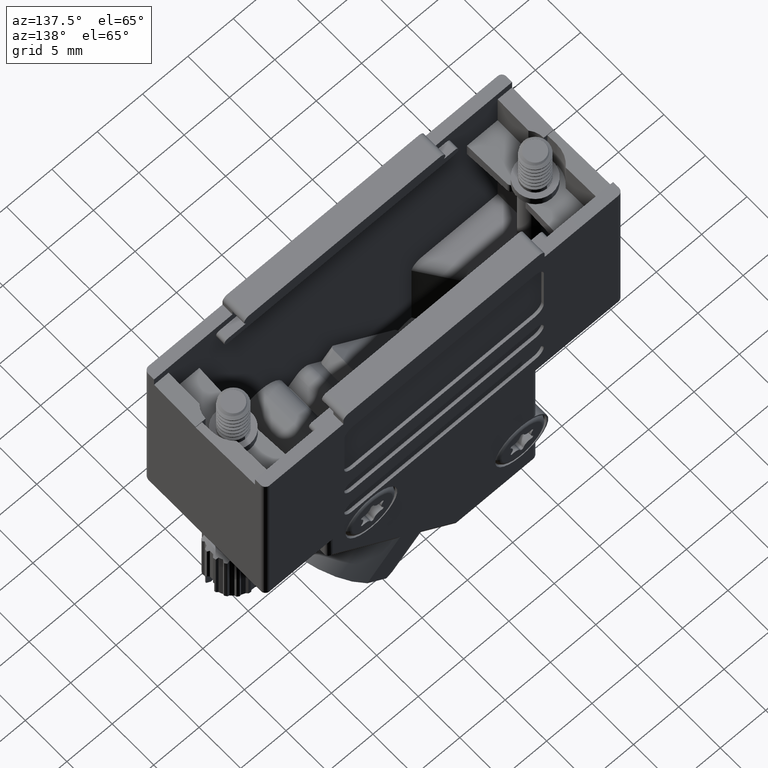
[diagram: clean part render]
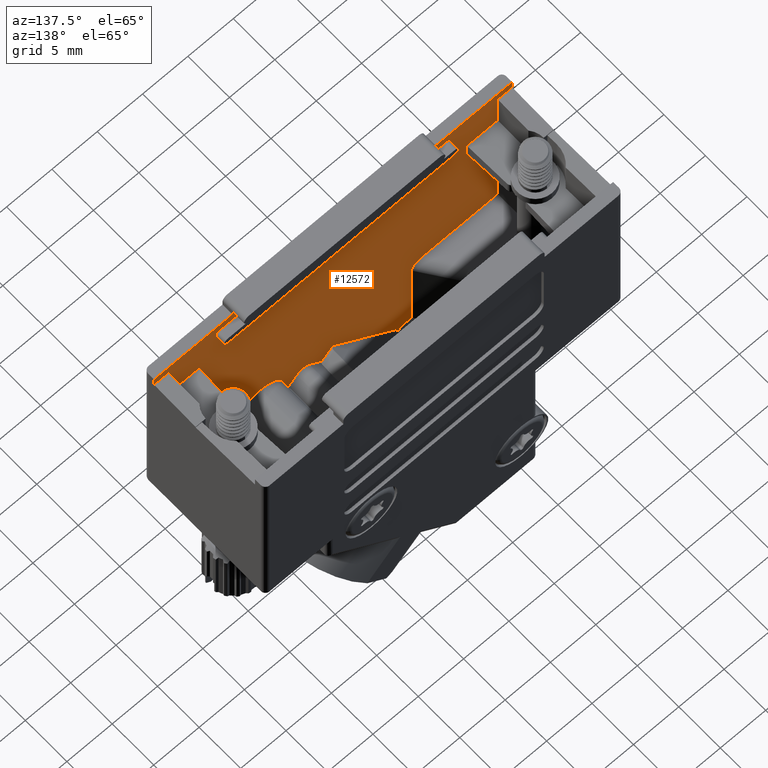
[diagram: same view with one face highlighted and labeled with its STEP entity id]
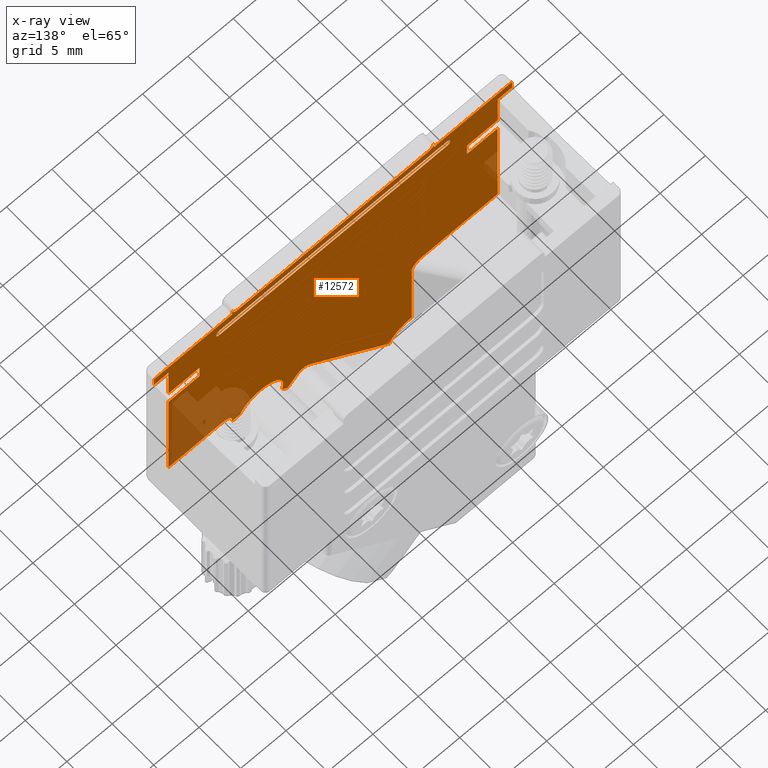
[diagram: x-ray of the same camera — body ghosted, the highlighted face saturated]
A machine part, auxiliary view. The second image highlights one B-rep face of the part: STEP entity #12572.
The next image is the same camera in x-ray: the body ghosted, the highlighted face saturated — about 9% of this face is hidden behind the body in this view.
In plain terms, the highlighted planar face has unit normal (0, 1, 0).
Its self-contained STEP definition (entity closure, byte-faithful):
#9 =( BOUNDED_CURVE ( )  B_SPLINE_CURVE ( 3, ( #13749, #17, #5198, #22217 ),
 .UNSPECIFIED., .F., .F. ) 
 B_SPLINE_CURVE_WITH_KNOTS ( ( 4, 4 ),
 ( 0.000000000000000000, 1.570796326794896558 ),
 .UNSPECIFIED. ) 
 CURVE ( )  GEOMETRIC_REPRESENTATION_ITEM ( )  RATIONAL_B_SPLINE_CURVE ( ( 1.000000000000000000, 0.8047378541243649375, 0.8047378541243649375, 1.000000000000000000 ) ) 
 REPRESENTATION_ITEM ( '' )  );
#17 = CARTESIAN_POINT ( 'NONE',  ( -8.650000000000000355, -6.149999999999998579, -19.61421356237309155 ) ) ;
#170 = VERTEX_POINT ( 'NONE', #13335 ) ;
#276 = DIRECTION ( 'NONE',  ( 0.000000000000000000, 0.000000000000000000, 1.000000000000000000 ) ) ;
#281 = CARTESIAN_POINT ( 'NONE',  ( 14.75000000000000000, -6.149999999999999467, -5.000000000000000000 ) ) ;
#285 = ORIENTED_EDGE ( 'NONE', *, *, #11134, .F. ) ;
#300 = CIRCLE ( 'NONE', #12899, 0.3999999999999995226 ) ;
#342 = CARTESIAN_POINT ( 'NONE',  ( -5.457285348059899732, -6.149999999999999467, -31.39547981021898693 ) ) ;
#394 = VERTEX_POINT ( 'NONE', #10622 ) ;
#428 = DIRECTION ( 'NONE',  ( 0.000000000000000000, 0.000000000000000000, -1.000000000000000000 ) ) ;
#460 = EDGE_LOOP ( 'NONE', ( #3868, #730, #10949, #14905, #7994, #11035, #7534, #11518 ) ) ;
#512 = VERTEX_POINT ( 'NONE', #1707 ) ;
#665 = LINE ( 'NONE', #9470, #6579 ) ;
#679 = LINE ( 'NONE', #14427, #5769 ) ;
#730 = ORIENTED_EDGE ( 'NONE', *, *, #5648, .F. ) ;
#816 = VERTEX_POINT ( 'NONE', #18033 ) ;
#819 = CARTESIAN_POINT ( 'NONE',  ( 2.603731957466735469, -6.149999999999999467, -21.92024894231925813 ) ) ;
#861 = CIRCLE ( 'NONE', #15975, 0.5999999999999997558 ) ;
#885 = CARTESIAN_POINT ( 'NONE',  ( 18.14999999999999858, -6.149999999999999467, 4.886340728597939669E-15 ) ) ;
#930 = CARTESIAN_POINT ( 'NONE',  ( -18.14999999999999858, -6.149999999999999467, 4.886340728597939669E-15 ) ) ;
#936 = CARTESIAN_POINT ( 'NONE',  ( -11.15000000000000036, -6.149999999999999467, -19.19999999999999574 ) ) ;
#1063 = CARTESIAN_POINT ( 'NONE',  ( 19.75000000000000000, -6.150000000000003020, -7.207046412982171989E-15 ) ) ;
#1265 = EDGE_CURVE ( 'NONE', #15718, #17739, #17963, .T. ) ;
#1367 = DIRECTION ( 'NONE',  ( 0.000000000000000000, 0.000000000000000000, 1.000000000000000000 ) ) ;
#1386 = VERTEX_POINT ( 'NONE', #21611 ) ;
#1484 = CARTESIAN_POINT ( 'NONE',  ( -8.650000000000000355, -6.149999999999999467, -20.19999999999999574 ) ) ;
#1521 = VECTOR ( 'NONE', #19870, 1000.000000000000000 ) ;
#1634 = CIRCLE ( 'NONE', #12079, 0.3999999999999997446 ) ;
#1654 = DIRECTION ( 'NONE',  ( 0.000000000000000000, 0.000000000000000000, 1.000000000000000000 ) ) ;
#1707 = CARTESIAN_POINT ( 'NONE',  ( 12.49999999999999645, -6.149999999999999467, -1.000000000000000000 ) ) ;
#1768 = VERTEX_POINT ( 'NONE', #15838 ) ;
#1769 = VECTOR ( 'NONE', #21869, 1000.000000000000000 ) ;
#1812 = DIRECTION ( 'NONE',  ( 0.7071067811865465735, -0.000000000000000000, 0.7071067811865485719 ) ) ;
#1939 = EDGE_CURVE ( 'NONE', #6476, #1386, #4758, .T. ) ;
#1951 = VECTOR ( 'NONE', #9880, 1000.000000000000000 ) ;
#1956 = ORIENTED_EDGE ( 'NONE', *, *, #18010, .T. ) ;
#2091 = EDGE_CURVE ( 'NONE', #9994, #15790, #3888, .T. ) ;
#2140 = VECTOR ( 'NONE', #8546, 1000.000000000000000 ) ;
#2186 = EDGE_CURVE ( 'NONE', #15790, #9910, #16673, .T. ) ;
#2225 = VERTEX_POINT ( 'NONE', #6333 ) ;
#2276 = ORIENTED_EDGE ( 'NONE', *, *, #6762, .F. ) ;
#2344 = EDGE_CURVE ( 'NONE', #15415, #9910, #7103, .T. ) ;
#2357 = DIRECTION ( 'NONE',  ( -0.000000000000000000, -1.000000000000000000, -0.000000000000000000 ) ) ;
#2431 = DIRECTION ( 'NONE',  ( 0.000000000000000000, 1.000000000000000000, 0.000000000000000000 ) ) ;
#2535 = EDGE_CURVE ( 'NONE', #11879, #512, #15986, .T. ) ;
#2582 = AXIS2_PLACEMENT_3D ( 'NONE', #8856, #15710, #276 ) ;
#2614 = CARTESIAN_POINT ( 'NONE',  ( -19.75000000000000000, -6.150000000000003020, 4.886340728597940458E-15 ) ) ;
#2685 = DIRECTION ( 'NONE',  ( 0.000000000000000000, 0.000000000000000000, 1.000000000000000000 ) ) ;
#2704 = DIRECTION ( 'NONE',  ( 0.7071067811865476838, 0.000000000000000000, -0.7071067811865474617 ) ) ;
#2736 = LINE ( 'NONE', #4552, #5571 ) ;
#2807 = DIRECTION ( 'NONE',  ( 0.000000000000000000, 1.000000000000000000, -0.000000000000000000 ) ) ;
#2946 = EDGE_CURVE ( 'NONE', #17761, #13256, #5831, .T. ) ;
#2975 = LINE ( 'NONE', #1063, #8337 ) ;
#3017 = LINE ( 'NONE', #11495, #4422 ) ;
#3131 = ORIENTED_EDGE ( 'NONE', *, *, #16115, .F. ) ;
#3164 = ORIENTED_EDGE ( 'NONE', *, *, #18586, .F. ) ;
#3253 = CARTESIAN_POINT ( 'NONE',  ( -18.14999999999999858, -6.149999999999999467, -6.599999999999999645 ) ) ;
#3347 = LINE ( 'NONE', #11722, #13090 ) ;
#3419 = LINE ( 'NONE', #17264, #21956 ) ;
#3501 = CARTESIAN_POINT ( 'NONE',  ( -12.49999999999999645, -6.149999999999999467, -1.899999999999999911 ) ) ;
#3582 = DIRECTION ( 'NONE',  ( 6.938893903907222067E-15, 0.000000000000000000, 1.000000000000000000 ) ) ;
#3583 = AXIS2_PLACEMENT_3D ( 'NONE', #16577, #16903, #1367 ) ;
#3659 = CARTESIAN_POINT ( 'NONE',  ( 12.50000000000000000, -6.149999999999999467, -1.500000000000000000 ) ) ;
#3720 = DIRECTION ( 'NONE',  ( 0.000000000000000000, 0.000000000000000000, 1.000000000000000000 ) ) ;
#3868 = ORIENTED_EDGE ( 'NONE', *, *, #7949, .F. ) ;
#3888 = LINE ( 'NONE', #14758, #11872 ) ;
#3919 = EDGE_LOOP ( 'NONE', ( #19517, #18004, #16842, #17251, #6657, #20510, #11639, #7997, #9923, #9827, #12361, #17989, #285, #13100, #12096, #4250, #1956, #14338, #7222, #20437, #16920, #3164, #17457, #6605, #19578, #9525, #11723, #4733, #15397, #4967, #18777, #2276, #13591, #3131, #11637, #20156, #5215, #18487 ) ) ;
#3953 = VECTOR ( 'NONE', #3720, 1000.000000000000000 ) ;
#3963 = CARTESIAN_POINT ( 'NONE',  ( 18.14999999999999858, -6.149999999999999467, -5.000000000000000888 ) ) ;
#4014 = VECTOR ( 'NONE', #2704, 1000.000000000000000 ) ;
#4038 = VERTEX_POINT ( 'NONE', #14054 ) ;
#4114 = CARTESIAN_POINT ( 'NONE',  ( 11.10000000000000142, -6.149999999999999467, 4.886340728597939669E-15 ) ) ;
#4250 = ORIENTED_EDGE ( 'NONE', *, *, #17124, .F. ) ;
#4253 = EDGE_CURVE ( 'NONE', #2225, #6476, #18739, .T. ) ;
#4272 = DIRECTION ( 'NONE',  ( 0.000000000000000000, 0.000000000000000000, 1.000000000000000000 ) ) ;
#4322 = VECTOR ( 'NONE', #14386, 1000.000000000000000 ) ;
#4382 = DIRECTION ( 'NONE',  ( 0.000000000000000000, 1.000000000000000000, 0.000000000000000000 ) ) ;
#4422 = VECTOR ( 'NONE', #4724, 1000.000000000000000 ) ;
#4436 = DIRECTION ( 'NONE',  ( -1.000000000000000000, 0.000000000000000000, 0.000000000000000000 ) ) ;
#4466 = DIRECTION ( 'NONE',  ( 0.000000000000000000, -0.000000000000000000, 1.000000000000000000 ) ) ;
#4536 = CARTESIAN_POINT ( 'NONE',  ( 18.14999999999999858, -6.149999999999999467, -1.000000000000000000 ) ) ;
#4552 = CARTESIAN_POINT ( 'NONE',  ( 11.14999999999998614, -6.149999999999999467, -19.19999999999999574 ) ) ;
#4683 = LINE ( 'NONE', #22137, #11589 ) ;
#4686 = LINE ( 'NONE', #6264, #1951 ) ;
#4691 = EDGE_CURVE ( 'NONE', #11421, #816, #4683, .T. ) ;
#4724 = DIRECTION ( 'NONE',  ( 1.000000000000000000, 0.000000000000000000, 0.000000000000000000 ) ) ;
#4733 = ORIENTED_EDGE ( 'NONE', *, *, #4691, .F. ) ;
#4758 = CIRCLE ( 'NONE', #2582, 2.500000000000002220 ) ;
#4769 = EDGE_CURVE ( 'NONE', #13256, #394, #2975, .T. ) ;
#4959 = LINE ( 'NONE', #18696, #21440 ) ;
#4967 = ORIENTED_EDGE ( 'NONE', *, *, #18152, .F. ) ;
#5038 = VERTEX_POINT ( 'NONE', #819 ) ;
#5089 = EDGE_CURVE ( 'NONE', #5669, #8301, #9400, .T. ) ;
#5159 = EDGE_CURVE ( 'NONE', #5832, #11421, #17972, .T. ) ;
#5198 = CARTESIAN_POINT ( 'NONE',  ( -9.154295968545127948, -6.149999999999998579, -19.19999999999999574 ) ) ;
#5215 = ORIENTED_EDGE ( 'NONE', *, *, #1939, .F. ) ;
#5329 = CARTESIAN_POINT ( 'NONE',  ( -18.14999999999999858, -6.150000000000003020, -1.000000000000000000 ) ) ;
#5347 = DIRECTION ( 'NONE',  ( 0.000000000000000000, 0.000000000000000000, -1.000000000000000000 ) ) ;
#5436 = VECTOR ( 'NONE', #10730, 1000.000000000000000 ) ;
#5496 = VECTOR ( 'NONE', #10126, 1000.000000000000000 ) ;
#5508 = EDGE_CURVE ( 'NONE', #9994, #11163, #679, .T. ) ;
#5571 = VECTOR ( 'NONE', #11546, 1000.000000000000000 ) ;
#5580 = AXIS2_PLACEMENT_3D ( 'NONE', #342, #16000, #12516 ) ;
#5598 = VECTOR ( 'NONE', #19817, 1000.000000000000000 ) ;
#5620 = CARTESIAN_POINT ( 'NONE',  ( 3.310838738653283819, -6.149999999999999467, -22.62735572350580426 ) ) ;
#5648 = EDGE_CURVE ( 'NONE', #512, #22238, #19445, .T. ) ;
#5669 = VERTEX_POINT ( 'NONE', #13397 ) ;
#5747 = DIRECTION ( 'NONE',  ( 1.000000000000000000, 0.000000000000000000, 0.000000000000000000 ) ) ;
#5769 = VECTOR ( 'NONE', #12744, 1000.000000000000000 ) ;
#5831 = LINE ( 'NONE', #12589, #4322 ) ;
#5832 = VERTEX_POINT ( 'NONE', #15520 ) ;
#6017 = EDGE_CURVE ( 'NONE', #4038, #15718, #3419, .T. ) ;
#6264 = CARTESIAN_POINT ( 'NONE',  ( 3.310838738653283819, -6.149999999999999467, -21.21314216113270845 ) ) ;
#6333 = CARTESIAN_POINT ( 'NONE',  ( -8.650000000000000355, -6.149999999999999467, -29.20450405730644405 ) ) ;
#6398 = CARTESIAN_POINT ( 'NONE',  ( -12.90000000000000036, -6.149999999999999467, -1.400000000000002798 ) ) ;
#6476 = VERTEX_POINT ( 'NONE', #8584 ) ;
#6510 = EDGE_CURVE ( 'NONE', #6530, #11451, #15437, .T. ) ;
#6523 = AXIS2_PLACEMENT_3D ( 'NONE', #6729, #8420, #18318 ) ;
#6530 = VERTEX_POINT ( 'NONE', #13641 ) ;
#6579 = VECTOR ( 'NONE', #16314, 1000.000000000000000 ) ;
#6601 = EDGE_CURVE ( 'NONE', #16268, #7312, #12747, .T. ) ;
#6605 = ORIENTED_EDGE ( 'NONE', *, *, #19067, .T. ) ;
#6657 = ORIENTED_EDGE ( 'NONE', *, *, #16480, .F. ) ;
#6729 = CARTESIAN_POINT ( 'NONE',  ( -8.500000000000003553, -6.149999999999999467, -31.69999999999999929 ) ) ;
#6762 = EDGE_CURVE ( 'NONE', #13736, #7880, #20175, .T. ) ;
#6874 = CARTESIAN_POINT ( 'NONE',  ( 18.14999999999999858, -6.149999999999999467, -6.599999999999999645 ) ) ;
#6894 = VERTEX_POINT ( 'NONE', #10251 ) ;
#6954 = CARTESIAN_POINT ( 'NONE',  ( 10.50000000000000178, -6.149999999999999467, 0.5999999999999999778 ) ) ;
#7102 = CARTESIAN_POINT ( 'NONE',  ( 11.14999999999998614, -6.149999999999999467, -20.19999999999999574 ) ) ;
#7103 = LINE ( 'NONE', #13957, #3953 ) ;
#7147 = DIRECTION ( 'NONE',  ( -1.000000000000000000, 0.000000000000000000, 0.000000000000000000 ) ) ;
#7222 = ORIENTED_EDGE ( 'NONE', *, *, #2946, .F. ) ;
#7233 = VERTEX_POINT ( 'NONE', #20259 ) ;
#7312 = VERTEX_POINT ( 'NONE', #16958 ) ;
#7534 = ORIENTED_EDGE ( 'NONE', *, *, #6510, .F. ) ;
#7793 = VECTOR ( 'NONE', #15309, 1000.000000000000000 ) ;
#7831 = LINE ( 'NONE', #9630, #1521 ) ;
#7880 = VERTEX_POINT ( 'NONE', #21959 ) ;
#7891 = DIRECTION ( 'NONE',  ( 0.000000000000000000, 0.000000000000000000, -1.000000000000000000 ) ) ;
#7949 = EDGE_CURVE ( 'NONE', #22238, #1768, #20165, .T. ) ;
#7950 = DIRECTION ( 'NONE',  ( 0.000000000000000000, 0.000000000000000000, 1.000000000000000000 ) ) ;
#7994 = ORIENTED_EDGE ( 'NONE', *, *, #12184, .F. ) ;
#7997 = ORIENTED_EDGE ( 'NONE', *, *, #2344, .T. ) ;
#8045 = DIRECTION ( 'NONE',  ( 0.000000000000000000, -0.000000000000000000, 1.000000000000000000 ) ) ;
#8301 = VERTEX_POINT ( 'NONE', #21707 ) ;
#8321 = CARTESIAN_POINT ( 'NONE',  ( -11.10000000000000142, -6.149999999999999467, 0.6000000000000024203 ) ) ;
#8329 = VERTEX_POINT ( 'NONE', #10919 ) ;
#8337 = VECTOR ( 'NONE', #7950, 1000.000000000000000 ) ;
#8420 = DIRECTION ( 'NONE',  ( 0.000000000000000000, 1.000000000000000000, 0.000000000000000000 ) ) ;
#8423 = DIRECTION ( 'NONE',  ( 0.000000000000000000, 1.000000000000000000, 0.000000000000000000 ) ) ;
#8542 = AXIS2_PLACEMENT_3D ( 'NONE', #21476, #2431, #4466 ) ;
#8546 = DIRECTION ( 'NONE',  ( 0.000000000000000000, 0.000000000000000000, -1.000000000000000000 ) ) ;
#8584 = CARTESIAN_POINT ( 'NONE',  ( -8.500000000000003553, -6.149999999999999467, -29.19999999999999574 ) ) ;
#8856 = CARTESIAN_POINT ( 'NONE',  ( -8.500000000000003553, -6.149999999999999467, -31.69999999999999929 ) ) ;
#8892 = CARTESIAN_POINT ( 'NONE',  ( -12.50000000000000000, -6.149999999999999467, -1.399999999999999911 ) ) ;
#8967 = EDGE_CURVE ( 'NONE', #17565, #11879, #300, .T. ) ;
#8969 = DIRECTION ( 'NONE',  ( -0.000000000000000000, -0.000000000000000000, 1.000000000000000000 ) ) ;
#9035 = CARTESIAN_POINT ( 'NONE',  ( 18.14999999999999858, -6.149999999999999467, 4.886340728597939669E-15 ) ) ;
#9066 = EDGE_CURVE ( 'NONE', #13736, #5038, #21910, .T. ) ;
#9097 = DIRECTION ( 'NONE',  ( 0.000000000000000000, 0.000000000000000000, 1.000000000000000000 ) ) ;
#9161 = CARTESIAN_POINT ( 'NONE',  ( 14.75000000000000000, -6.149999999999999467, -5.000000000000000000 ) ) ;
#9400 = LINE ( 'NONE', #930, #20506 ) ;
#9469 = LINE ( 'NONE', #885, #5598 ) ;
#9470 = CARTESIAN_POINT ( 'NONE',  ( -18.14999999999999858, -6.149999999999999467, -19.19999999999999574 ) ) ;
#9525 = ORIENTED_EDGE ( 'NONE', *, *, #1265, .T. ) ;
#9619 = VERTEX_POINT ( 'NONE', #18073 ) ;
#9630 = CARTESIAN_POINT ( 'NONE',  ( -18.14999999999999858, -6.149999999999999467, -5.000000000000000888 ) ) ;
#9682 = LINE ( 'NONE', #8321, #5496 ) ;
#9713 = DIRECTION ( 'NONE',  ( 0.000000000000000000, 0.000000000000000000, -1.000000000000000000 ) ) ;
#9759 = VERTEX_POINT ( 'NONE', #16930 ) ;
#9792 = CARTESIAN_POINT ( 'NONE',  ( -12.90000000000000036, -6.149999999999999467, -1.499999999999997113 ) ) ;
#9827 = ORIENTED_EDGE ( 'NONE', *, *, #2091, .F. ) ;
#9880 = DIRECTION ( 'NONE',  ( 0.7071067811865475727, -0.000000000000000000, 0.7071067811865474617 ) ) ;
#9910 = VERTEX_POINT ( 'NONE', #5329 ) ;
#9923 = ORIENTED_EDGE ( 'NONE', *, *, #2186, .F. ) ;
#9976 = DIRECTION ( 'NONE',  ( 1.000000000000000000, 0.000000000000000000, 0.000000000000000000 ) ) ;
#9994 = VERTEX_POINT ( 'NONE', #2614 ) ;
#10021 = CARTESIAN_POINT ( 'NONE',  ( 12.90000000000000036, -6.149999999999999467, -1.400000000000002798 ) ) ;
#10126 = DIRECTION ( 'NONE',  ( 2.891205793294690455E-15, 0.000000000000000000, -1.000000000000000000 ) ) ;
#10139 = VERTEX_POINT ( 'NONE', #19975 ) ;
#10202 = VECTOR ( 'NONE', #16743, 1000.000000000000000 ) ;
#10251 = CARTESIAN_POINT ( 'NONE',  ( 14.75000000000000000, -6.149999999999999467, -6.599999999999999645 ) ) ;
#10260 = CARTESIAN_POINT ( 'NONE',  ( -18.14999999999999858, -6.149999999999999467, -6.599999999999999645 ) ) ;
#10378 = CARTESIAN_POINT ( 'NONE',  ( 5.646255712926483206, -6.149999999999999467, -22.34254841467347674 ) ) ;
#10622 = CARTESIAN_POINT ( 'NONE',  ( 19.75000000000000000, -6.150000000000003020, -7.207046412982171989E-15 ) ) ;
#10686 = VERTEX_POINT ( 'NONE', #1484 ) ;
#10704 = CARTESIAN_POINT ( 'NONE',  ( 19.75000000000000000, -6.150000000000003020, -1.000000000000000000 ) ) ;
#10730 = DIRECTION ( 'NONE',  ( 1.000000000000000000, -0.000000000000000000, -2.551063935260010491E-16 ) ) ;
#10771 = CARTESIAN_POINT ( 'NONE',  ( -1.780330085889852088, -6.149999999999999467, -26.30431098567584414 ) ) ;
#10775 = EDGE_CURVE ( 'NONE', #7880, #9759, #18919, .T. ) ;
#10794 = CARTESIAN_POINT ( 'NONE',  ( 12.14999999999998970, -6.149999999999999467, -19.19999999999999574 ) ) ;
#10823 = EDGE_CURVE ( 'NONE', #10139, #1386, #17840, .T. ) ;
#10892 = AXIS2_PLACEMENT_3D ( 'NONE', #22263, #16741, #11806 ) ;
#10919 = CARTESIAN_POINT ( 'NONE',  ( -9.867478166711729060, -6.149999999999999467, -19.19999999999999574 ) ) ;
#10949 = ORIENTED_EDGE ( 'NONE', *, *, #2535, .F. ) ;
#11035 = ORIENTED_EDGE ( 'NONE', *, *, #15481, .F. ) ;
#11134 = EDGE_CURVE ( 'NONE', #5669, #19367, #20244, .T. ) ;
#11163 = VERTEX_POINT ( 'NONE', #20572 ) ;
#11253 = EDGE_CURVE ( 'NONE', #2225, #10686, #19330, .T. ) ;
#11268 = CARTESIAN_POINT ( 'NONE',  ( -12.50000000000000000, -6.149999999999999467, -1.500000000000000000 ) ) ;
#11421 = VERTEX_POINT ( 'NONE', #13429 ) ;
#11451 = VERTEX_POINT ( 'NONE', #12296 ) ;
#11486 = EDGE_CURVE ( 'NONE', #10686, #8329, #9, .T. ) ;
#11495 = CARTESIAN_POINT ( 'NONE',  ( -18.14999999999999858, -6.149999999999999467, 4.886340728597939669E-15 ) ) ;
#11518 = ORIENTED_EDGE ( 'NONE', *, *, #18570, .F. ) ;
#11546 = DIRECTION ( 'NONE',  ( 0.000000000000000000, 0.000000000000000000, -1.000000000000000000 ) ) ;
#11589 = VECTOR ( 'NONE', #9976, 1000.000000000000000 ) ;
#11637 = ORIENTED_EDGE ( 'NONE', *, *, #14117, .F. ) ;
#11639 = ORIENTED_EDGE ( 'NONE', *, *, #17134, .F. ) ;
#11722 = CARTESIAN_POINT ( 'NONE',  ( -14.75000000000000000, -6.149999999999999467, -5.000000000000000000 ) ) ;
#11723 = ORIENTED_EDGE ( 'NONE', *, *, #14477, .T. ) ;
#11806 = DIRECTION ( 'NONE',  ( 0.000000000000000000, 0.000000000000000000, 1.000000000000000000 ) ) ;
#11833 = CARTESIAN_POINT ( 'NONE',  ( -12.49999999999999645, -6.149999999999999467, -1.000000000000000000 ) ) ;
#11872 = VECTOR ( 'NONE', #9713, 1000.000000000000000 ) ;
#11879 = VERTEX_POINT ( 'NONE', #11833 ) ;
#11981 = CIRCLE ( 'NONE', #21324, 2.499999999999998668 ) ;
#12079 = AXIS2_PLACEMENT_3D ( 'NONE', #11268, #4382, #2685 ) ;
#12096 = ORIENTED_EDGE ( 'NONE', *, *, #13830, .F. ) ;
#12184 = EDGE_CURVE ( 'NONE', #16813, #17565, #21833, .T. ) ;
#12208 = AXIS2_PLACEMENT_3D ( 'NONE', #21061, #2357, #4272 ) ;
#12296 = CARTESIAN_POINT ( 'NONE',  ( -12.49999999999999645, -6.149999999999999467, -1.899999999999999911 ) ) ;
#12336 = DIRECTION ( 'NONE',  ( 0.000000000000000000, 1.000000000000000000, -0.000000000000000000 ) ) ;
#12361 = ORIENTED_EDGE ( 'NONE', *, *, #5508, .T. ) ;
#12375 = DIRECTION ( 'NONE',  ( 0.000000000000000000, 1.000000000000000000, -0.000000000000000000 ) ) ;
#12437 = DIRECTION ( 'NONE',  ( 1.000000000000000000, 0.000000000000000000, 0.000000000000000000 ) ) ;
#12516 = DIRECTION ( 'NONE',  ( -1.387778780781444413E-14, 0.000000000000000000, 1.000000000000000000 ) ) ;
#12572 = ADVANCED_FACE ( 'NONE', ( #14924, #13141 ), #20015, .T. ) ;
#12589 = CARTESIAN_POINT ( 'NONE',  ( -19.75000000000000000, -6.150000000000003020, -1.000000000000000000 ) ) ;
#12618 = AXIS2_PLACEMENT_3D ( 'NONE', #16660, #2807, #7891 ) ;
#12744 = DIRECTION ( 'NONE',  ( 1.000000000000000000, 0.000000000000000000, 0.000000000000000000 ) ) ;
#12747 = LINE ( 'NONE', #3963, #5436 ) ;
#12810 = VECTOR ( 'NONE', #1812, 1000.000000000000000 ) ;
#12862 = CARTESIAN_POINT ( 'NONE',  ( -12.90000000000000036, -6.149999999999999467, -1.400000000000002798 ) ) ;
#12899 = AXIS2_PLACEMENT_3D ( 'NONE', #8892, #12375, #428 ) ;
#12974 = VERTEX_POINT ( 'NONE', #4114 ) ;
#13090 = VECTOR ( 'NONE', #22178, 1000.000000000000000 ) ;
#13100 = ORIENTED_EDGE ( 'NONE', *, *, #5089, .T. ) ;
#13141 = FACE_BOUND ( 'NONE', #460, .T. ) ;
#13256 = VERTEX_POINT ( 'NONE', #10704 ) ;
#13335 = CARTESIAN_POINT ( 'NONE',  ( 11.10000000000000142, -6.149999999999999467, 0.5999999999999999778 ) ) ;
#13397 = CARTESIAN_POINT ( 'NONE',  ( -10.50000000000000000, -6.149999999999999467, 2.311115933264683024E-30 ) ) ;
#13429 = CARTESIAN_POINT ( 'NONE',  ( 10.29128784747791769, -6.149999999999999467, -20.49999999999999645 ) ) ;
#13519 = CARTESIAN_POINT ( 'NONE',  ( -19.75000000000000000, -6.150000000000003020, -1.000000000000000000 ) ) ;
#13591 = ORIENTED_EDGE ( 'NONE', *, *, #9066, .T. ) ;
#13641 = CARTESIAN_POINT ( 'NONE',  ( 12.49999999999999645, -6.149999999999999467, -1.899999999999999689 ) ) ;
#13736 = VERTEX_POINT ( 'NONE', #17643 ) ;
#13749 = CARTESIAN_POINT ( 'NONE',  ( -8.650000000000000355, -6.149999999999999467, -20.19999999999999574 ) ) ;
#13817 = DIRECTION ( 'NONE',  ( 0.000000000000000000, 1.000000000000000000, 0.000000000000000000 ) ) ;
#13830 = EDGE_CURVE ( 'NONE', #170, #8301, #861, .T. ) ;
#13957 = CARTESIAN_POINT ( 'NONE',  ( -18.14999999999999858, -6.149999999999999467, -19.19999999999999574 ) ) ;
#14054 = CARTESIAN_POINT ( 'NONE',  ( 18.14999999999999858, -6.149999999999999467, -19.19999999999999574 ) ) ;
#14074 = DIRECTION ( 'NONE',  ( 0.7071067811865475727, -0.000000000000000000, 0.7071067811865474617 ) ) ;
#14117 = EDGE_CURVE ( 'NONE', #10139, #20027, #4686, .T. ) ;
#14338 = ORIENTED_EDGE ( 'NONE', *, *, #4769, .F. ) ;
#14386 = DIRECTION ( 'NONE',  ( 1.000000000000000000, -0.000000000000000000, 0.000000000000000000 ) ) ;
#14424 = VECTOR ( 'NONE', #15335, 1000.000000000000000 ) ;
#14427 = CARTESIAN_POINT ( 'NONE',  ( -18.14999999999999858, -6.149999999999999467, 4.886340728597939669E-15 ) ) ;
#14477 = EDGE_CURVE ( 'NONE', #17739, #816, #2736, .T. ) ;
#14557 = EDGE_CURVE ( 'NONE', #8329, #20137, #16364, .T. ) ;
#14753 = CARTESIAN_POINT ( 'NONE',  ( 12.90000000000000036, -6.149999999999999467, -1.400000000000002798 ) ) ;
#14758 = CARTESIAN_POINT ( 'NONE',  ( -19.75000000000000000, -6.150000000000003020, 4.886340728597939669E-15 ) ) ;
#14905 = ORIENTED_EDGE ( 'NONE', *, *, #8967, .F. ) ;
#14924 = FACE_OUTER_BOUND ( 'NONE', #3919, .T. ) ;
#15309 = DIRECTION ( 'NONE',  ( -1.000000000000000000, -0.000000000000000000, -0.000000000000000000 ) ) ;
#15335 = DIRECTION ( 'NONE',  ( -1.000000000000000000, -0.000000000000000000, -0.000000000000000000 ) ) ;
#15397 = ORIENTED_EDGE ( 'NONE', *, *, #5159, .F. ) ;
#15415 = VERTEX_POINT ( 'NONE', #21614 ) ;
#15437 = LINE ( 'NONE', #3501, #14424 ) ;
#15472 = EDGE_CURVE ( 'NONE', #17761, #7312, #9469, .T. ) ;
#15476 = LINE ( 'NONE', #281, #19173 ) ;
#15481 = EDGE_CURVE ( 'NONE', #11451, #16813, #1634, .T. ) ;
#15520 = CARTESIAN_POINT ( 'NONE',  ( 7.999999999999996447, -6.149999999999999467, -19.00000000000000000 ) ) ;
#15710 = DIRECTION ( 'NONE',  ( 0.000000000000000000, 1.000000000000000000, 0.000000000000000000 ) ) ;
#15718 = VERTEX_POINT ( 'NONE', #10794 ) ;
#15790 = VERTEX_POINT ( 'NONE', #21985 ) ;
#15838 = CARTESIAN_POINT ( 'NONE',  ( 12.90000000000000036, -6.149999999999999467, -1.499999999999997113 ) ) ;
#15953 = VECTOR ( 'NONE', #17569, 1000.000000000000000 ) ;
#15975 = AXIS2_PLACEMENT_3D ( 'NONE', #6954, #8423, #1654 ) ;
#15986 = LINE ( 'NONE', #19602, #20136 ) ;
#16000 = DIRECTION ( 'NONE',  ( -0.000000000000000000, -1.000000000000000000, -0.000000000000000000 ) ) ;
#16115 = EDGE_CURVE ( 'NONE', #20027, #5038, #4959, .T. ) ;
#16268 = VERTEX_POINT ( 'NONE', #9161 ) ;
#16314 = DIRECTION ( 'NONE',  ( 0.000000000000000000, 0.000000000000000000, 1.000000000000000000 ) ) ;
#16364 = LINE ( 'NONE', #936, #18859 ) ;
#16480 = EDGE_CURVE ( 'NONE', #19804, #17708, #21976, .T. ) ;
#16577 = CARTESIAN_POINT ( 'NONE',  ( 7.999999999999996447, -6.149999999999999467, -21.50000000000000000 ) ) ;
#16630 = EDGE_CURVE ( 'NONE', #9619, #6894, #22154, .T. ) ;
#16660 = CARTESIAN_POINT ( 'NONE',  ( 12.50000000000000000, -6.149999999999999467, -1.399999999999999911 ) ) ;
#16673 = LINE ( 'NONE', #13519, #1769 ) ;
#16741 = DIRECTION ( 'NONE',  ( 0.000000000000000000, 1.000000000000000000, 0.000000000000000000 ) ) ;
#16743 = DIRECTION ( 'NONE',  ( -0.000000000000000000, -0.000000000000000000, 1.000000000000000000 ) ) ;
#16759 = CARTESIAN_POINT ( 'NONE',  ( -11.10000000000000142, -6.149999999999999467, 0.6000000000000024203 ) ) ;
#16813 = VERTEX_POINT ( 'NONE', #9792 ) ;
#16835 = CARTESIAN_POINT ( 'NONE',  ( -14.75000000000000000, -6.149999999999999467, -6.599999999999999645 ) ) ;
#16842 = ORIENTED_EDGE ( 'NONE', *, *, #14557, .T. ) ;
#16903 = DIRECTION ( 'NONE',  ( 0.000000000000000000, 1.000000000000000000, 0.000000000000000000 ) ) ;
#16920 = ORIENTED_EDGE ( 'NONE', *, *, #6601, .F. ) ;
#16930 = CARTESIAN_POINT ( 'NONE',  ( 5.646255712926482317, -6.149999999999999467, -22.34254841467347674 ) ) ;
#16958 = CARTESIAN_POINT ( 'NONE',  ( 18.14999999999999858, -6.149999999999999467, -5.000000000000000888 ) ) ;
#17124 = EDGE_CURVE ( 'NONE', #12974, #170, #21786, .T. ) ;
#17134 = EDGE_CURVE ( 'NONE', #15415, #7233, #7831, .T. ) ;
#17251 = ORIENTED_EDGE ( 'NONE', *, *, #17851, .T. ) ;
#17264 = CARTESIAN_POINT ( 'NONE',  ( 18.14999999999999858, -6.149999999999999467, -19.19999999999999574 ) ) ;
#17457 = ORIENTED_EDGE ( 'NONE', *, *, #16630, .F. ) ;
#17565 = VERTEX_POINT ( 'NONE', #12862 ) ;
#17569 = DIRECTION ( 'NONE',  ( 0.000000000000000000, 0.000000000000000000, -1.000000000000000000 ) ) ;
#17643 = CARTESIAN_POINT ( 'NONE',  ( 4.017945519839832613, -6.149999999999999467, -21.92024894231925813 ) ) ;
#17708 = VERTEX_POINT ( 'NONE', #10260 ) ;
#17739 = VERTEX_POINT ( 'NONE', #7102 ) ;
#17761 = VERTEX_POINT ( 'NONE', #4536 ) ;
#17840 = CIRCLE ( 'NONE', #5580, 1.000000000000000888 ) ;
#17851 = EDGE_CURVE ( 'NONE', #20137, #17708, #665, .T. ) ;
#17963 = CIRCLE ( 'NONE', #12208, 1.000000000000000888 ) ;
#17972 = CIRCLE ( 'NONE', #3583, 2.499999999999998668 ) ;
#17989 = ORIENTED_EDGE ( 'NONE', *, *, #17995, .F. ) ;
#17995 = EDGE_CURVE ( 'NONE', #19367, #11163, #9682, .T. ) ;
#18004 = ORIENTED_EDGE ( 'NONE', *, *, #11486, .T. ) ;
#18010 = EDGE_CURVE ( 'NONE', #12974, #394, #3017, .T. ) ;
#18033 = CARTESIAN_POINT ( 'NONE',  ( 11.14999999999998614, -6.149999999999999467, -20.49999999999999645 ) ) ;
#18073 = CARTESIAN_POINT ( 'NONE',  ( 18.14999999999999858, -6.149999999999999467, -6.599999999999999645 ) ) ;
#18152 = EDGE_CURVE ( 'NONE', #9759, #5832, #11981, .T. ) ;
#18276 = CARTESIAN_POINT ( 'NONE',  ( 11.10000000000000142, -6.149999999999999467, 4.886340728597939669E-15 ) ) ;
#18291 = AXIS2_PLACEMENT_3D ( 'NONE', #5620, #19240, #3582 ) ;
#18318 = DIRECTION ( 'NONE',  ( 0.000000000000000000, 0.000000000000000000, 1.000000000000000000 ) ) ;
#18335 = CARTESIAN_POINT ( 'NONE',  ( 7.999999999999996447, -6.149999999999999467, -21.50000000000000000 ) ) ;
#18421 = VECTOR ( 'NONE', #9097, 1000.000000000000000 ) ;
#18487 = ORIENTED_EDGE ( 'NONE', *, *, #4253, .F. ) ;
#18570 = EDGE_CURVE ( 'NONE', #1768, #6530, #19905, .T. ) ;
#18586 = EDGE_CURVE ( 'NONE', #6894, #16268, #15476, .T. ) ;
#18696 = CARTESIAN_POINT ( 'NONE',  ( 3.310838738653283819, -6.149999999999999467, -21.21314216113270845 ) ) ;
#18739 = CIRCLE ( 'NONE', #6523, 2.500000000000002220 ) ;
#18777 = ORIENTED_EDGE ( 'NONE', *, *, #10775, .F. ) ;
#18808 = AXIS2_PLACEMENT_3D ( 'NONE', #3659, #12336, #5347 ) ;
#18859 = VECTOR ( 'NONE', #4436, 1000.000000000000000 ) ;
#18919 = LINE ( 'NONE', #10378, #12810 ) ;
#19067 = EDGE_CURVE ( 'NONE', #9619, #4038, #19376, .T. ) ;
#19135 = DIRECTION ( 'NONE',  ( -1.000000000000000000, 0.000000000000000000, 0.000000000000000000 ) ) ;
#19173 = VECTOR ( 'NONE', #8969, 1000.000000000000000 ) ;
#19240 = DIRECTION ( 'NONE',  ( -0.000000000000000000, -1.000000000000000000, -0.000000000000000000 ) ) ;
#19330 = LINE ( 'NONE', #19444, #18421 ) ;
#19332 = EDGE_CURVE ( 'NONE', #7233, #19804, #3347, .T. ) ;
#19367 = VERTEX_POINT ( 'NONE', #16759 ) ;
#19376 = LINE ( 'NONE', #9035, #15953 ) ;
#19444 = CARTESIAN_POINT ( 'NONE',  ( -8.650000000000000355, -6.149999999999999467, -40.22416418952613526 ) ) ;
#19445 = CIRCLE ( 'NONE', #12618, 0.3999999999999995226 ) ;
#19517 = ORIENTED_EDGE ( 'NONE', *, *, #11253, .T. ) ;
#19578 = ORIENTED_EDGE ( 'NONE', *, *, #6017, .T. ) ;
#19602 = CARTESIAN_POINT ( 'NONE',  ( -12.49999999999999645, -6.149999999999999467, -1.000000000000000000 ) ) ;
#19767 = CARTESIAN_POINT ( 'NONE',  ( -18.14999999999999858, -6.149999999999999467, -19.19999999999999574 ) ) ;
#19804 = VERTEX_POINT ( 'NONE', #16835 ) ;
#19817 = DIRECTION ( 'NONE',  ( 0.000000000000000000, 0.000000000000000000, -1.000000000000000000 ) ) ;
#19870 = DIRECTION ( 'NONE',  ( 1.000000000000000000, 0.000000000000000000, 2.551063935260010491E-16 ) ) ;
#19905 = CIRCLE ( 'NONE', #18808, 0.3999999999999997446 ) ;
#19975 = CARTESIAN_POINT ( 'NONE',  ( -6.164392129246446750, -6.149999999999999467, -30.68837302903243724 ) ) ;
#20015 = PLANE ( 'NONE',  #8542 ) ;
#20027 = VERTEX_POINT ( 'NONE', #10771 ) ;
#20064 = CARTESIAN_POINT ( 'NONE',  ( 3.310838738653283819, -6.149999999999999467, -21.21314216113270845 ) ) ;
#20136 = VECTOR ( 'NONE', #5747, 1000.000000000000000 ) ;
#20137 = VERTEX_POINT ( 'NONE', #19767 ) ;
#20156 = ORIENTED_EDGE ( 'NONE', *, *, #10823, .T. ) ;
#20165 = LINE ( 'NONE', #10021, #2140 ) ;
#20175 = LINE ( 'NONE', #20064, #4014 ) ;
#20244 = CIRCLE ( 'NONE', #10892, 0.6000000000000020872 ) ;
#20259 = CARTESIAN_POINT ( 'NONE',  ( -14.75000000000000000, -6.149999999999999467, -4.999999999999999112 ) ) ;
#20437 = ORIENTED_EDGE ( 'NONE', *, *, #15472, .T. ) ;
#20506 = VECTOR ( 'NONE', #12437, 1000.000000000000000 ) ;
#20510 = ORIENTED_EDGE ( 'NONE', *, *, #19332, .F. ) ;
#20572 = CARTESIAN_POINT ( 'NONE',  ( -11.09999999999999964, -6.149999999999999467, 4.886340728597939669E-15 ) ) ;
#20921 = DIRECTION ( 'NONE',  ( 0.000000000000000000, 0.000000000000000000, 1.000000000000000000 ) ) ;
#21061 = CARTESIAN_POINT ( 'NONE',  ( 12.14999999999998792, -6.149999999999999467, -20.19999999999999574 ) ) ;
#21324 = AXIS2_PLACEMENT_3D ( 'NONE', #18335, #13817, #20921 ) ;
#21363 = VECTOR ( 'NONE', #19135, 1000.000000000000000 ) ;
#21440 = VECTOR ( 'NONE', #14074, 1000.000000000000000 ) ;
#21476 = CARTESIAN_POINT ( 'NONE',  ( 0.000000000000000000, -6.149999999999999467, 0.000000000000000000 ) ) ;
#21611 = CARTESIAN_POINT ( 'NONE',  ( -6.198361641809938760, -6.149999999999999467, -30.72405898328426588 ) ) ;
#21614 = CARTESIAN_POINT ( 'NONE',  ( -18.14999999999999858, -6.149999999999999467, -5.000000000000000888 ) ) ;
#21707 = CARTESIAN_POINT ( 'NONE',  ( 10.50000000000000178, -6.149999999999999467, 2.418233637566950130E-30 ) ) ;
#21725 = VECTOR ( 'NONE', #8045, 1000.000000000000000 ) ;
#21786 = LINE ( 'NONE', #18276, #21725 ) ;
#21833 = LINE ( 'NONE', #6398, #10202 ) ;
#21869 = DIRECTION ( 'NONE',  ( 1.000000000000000000, -0.000000000000000000, 0.000000000000000000 ) ) ;
#21910 = CIRCLE ( 'NONE', #18291, 1.000000000000000888 ) ;
#21956 = VECTOR ( 'NONE', #7147, 1000.000000000000000 ) ;
#21959 = CARTESIAN_POINT ( 'NONE',  ( 5.043250352560268546, -6.149999999999999467, -22.94555377503969140 ) ) ;
#21976 = LINE ( 'NONE', #3253, #7793 ) ;
#21985 = CARTESIAN_POINT ( 'NONE',  ( -19.75000000000000000, -6.150000000000003020, -1.000000000000000000 ) ) ;
#22137 = CARTESIAN_POINT ( 'NONE',  ( 10.29128784747791414, -6.149999999999999467, -20.49999999999999645 ) ) ;
#22154 = LINE ( 'NONE', #6874, #21363 ) ;
#22178 = DIRECTION ( 'NONE',  ( 0.000000000000000000, 0.000000000000000000, -1.000000000000000000 ) ) ;
#22217 = CARTESIAN_POINT ( 'NONE',  ( -9.867478166711729060, -6.149999999999999467, -19.19999999999999574 ) ) ;
#22238 = VERTEX_POINT ( 'NONE', #14753 ) ;
#22263 = CARTESIAN_POINT ( 'NONE',  ( -10.50000000000000000, -6.149999999999999467, 0.6000000000000023093 ) ) ;